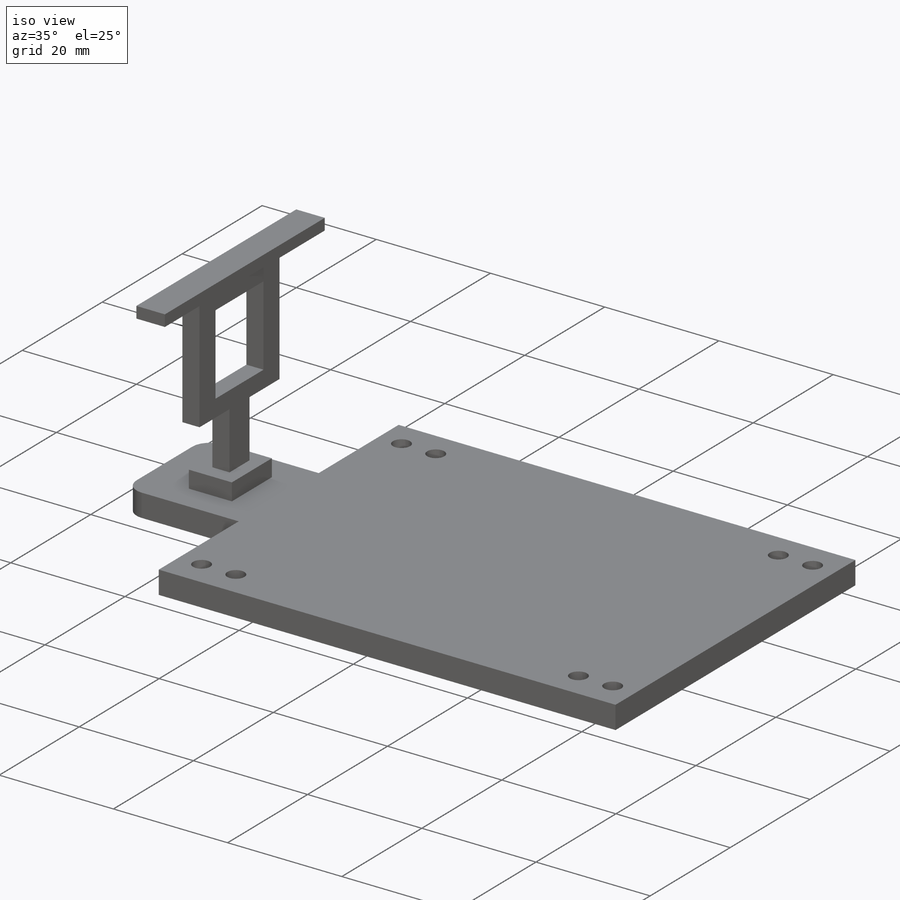
[diagram: iso view]
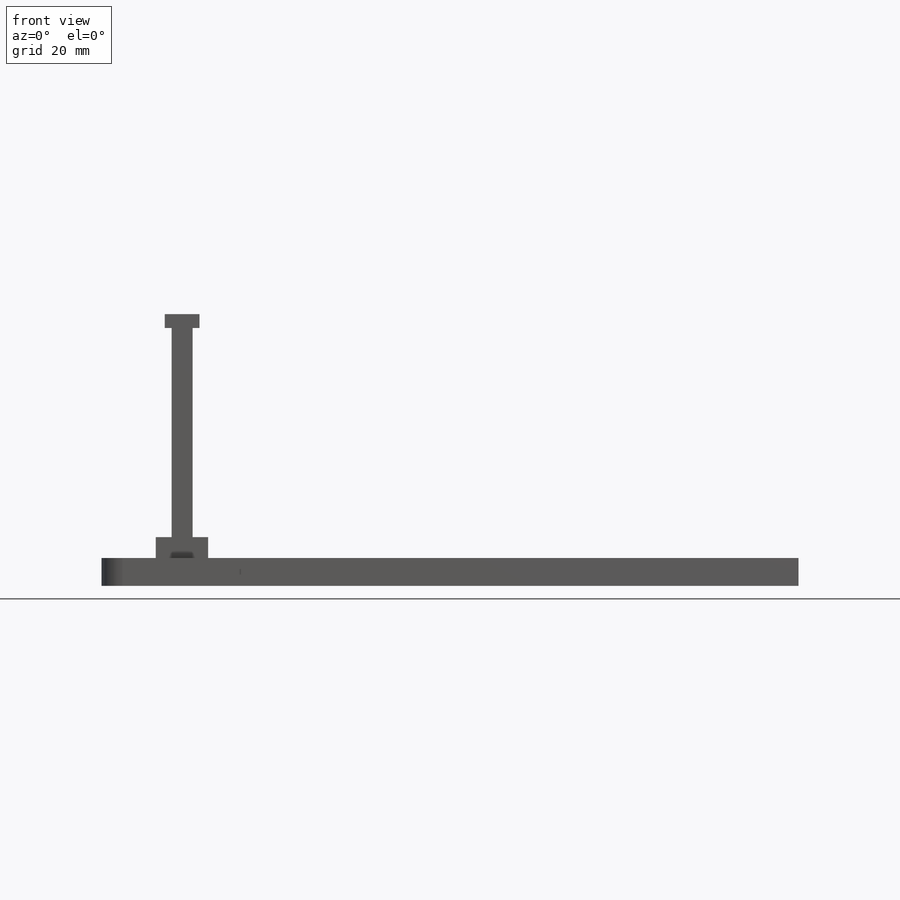
[diagram: front view]
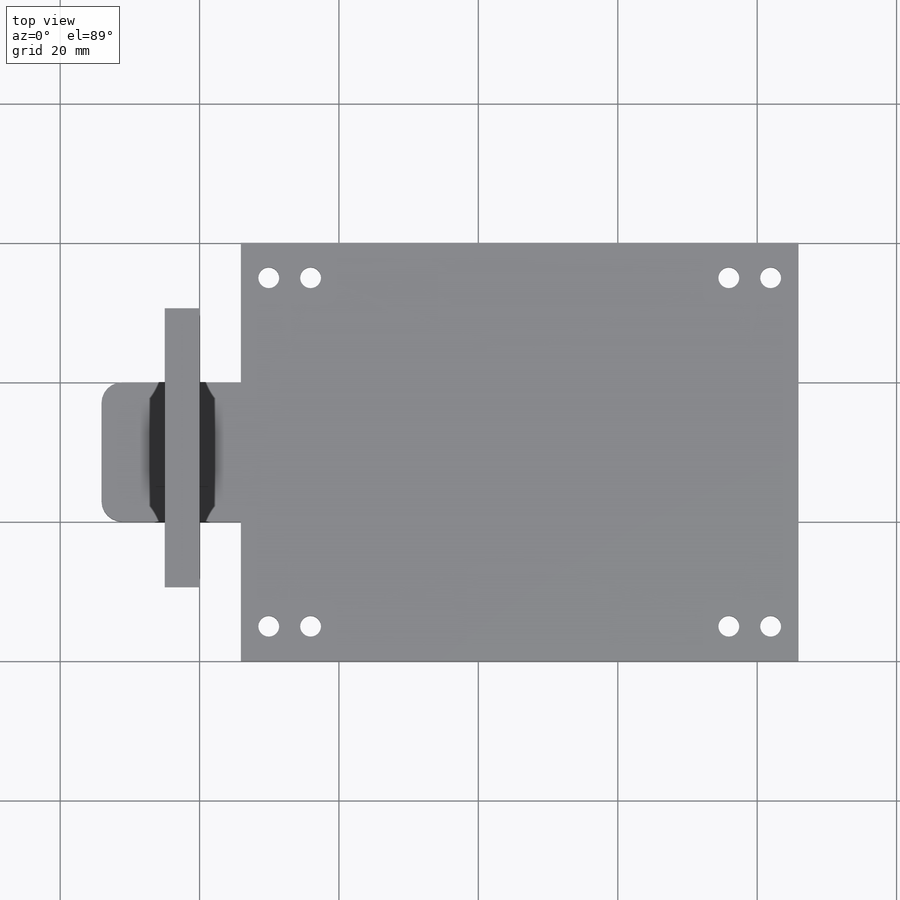
[diagram: top view]
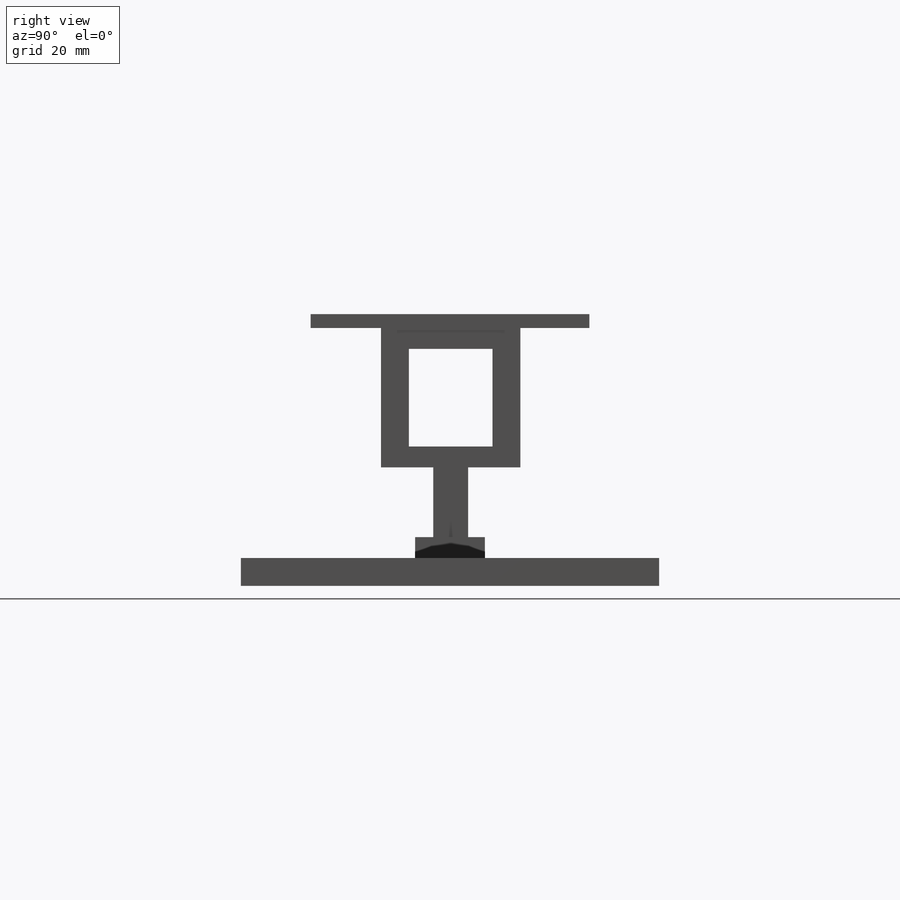
[diagram: right view]
SOLIDWORKS PART (.sldprt)
format: sldprt  version: not decoded by parser v0  size: 281,088 bytes
history: native  units: mm
features: sketch x5, extrude x4, material x1, cut_extrude x1 (+13 scaffold rows collapsed)
feature tree (24):
  scaffold x13  (default folders/planes/origin — collapsed)
  material  "Material <not specified>"
  sketch  "Sketch1"  dims[c1.D6=~4.213693mm c1.D2=3.0mm c1.D4=3.0mm c2.D6=3.0mm c2.D7=3.0mm c2.D8=3.0mm c2.D9=3.0mm c2.D10=3.0mm c2.D11=3.0mm c2.D12=3.0mm c2.D13=3.0mm c2.D14=3.0mm c2.D15=3.0mm c2.D16=3.0mm c2.D17=3.0mm c2.D18=3.0mm c2.D19=3.0mm c2.D1=80.0mm c2.D2=20.0mm c2.D3=60.0mm c2.D4=20.0mm c2.D5=20.0mm c3.D2=5.0mm c3.D4=5.0mm c3.D6=10.0mm c3.D7=4.0mm c3.D8=5.0mm c3.D9=4.0mm c3.D10=5.0mm c3.D11=10.0mm c3.D12=5.0mm c3.D13=5.0mm c3.D14=10.0mm c3.D15=4.0mm c3.D16=5.0mm c3.D17=10.0mm c3.D18=5.0mm c3.D19=4.0mm]
  extrude  "Boss-Extrude2"  Depth=4mm
  sketch  "Sketch2"  dims[D1=5.0mm D2=5.0mm D3=10.0mm]
  extrude  "Boss-Extrude3"  Depth=3mm
  sketch  "Sketch4"  dims[D1=10.0mm D2=10.0mm D3=20.0mm D4=20.0mm D5=20.0mm D6=5.0mm D7=7.5mm D8=10.0mm D9=3.0mm D10=3.0mm D11=3.0mm D12=4.0mm D13=4.0mm]
  extrude  "Boss-Extrude4"  Depth=64mm
  sketch  "Sketch5"
  cut_extrude  "Cut-Extrude1"  Depth=61mm
  sketch  "Sketch6"  dims[D1=40.0mm D2=5.0mm D3=1.0mm D4=10.0mm D5=~9.897016mm]
  extrude  "Boss-Extrude5"  Depth=2mm
decode coverage: 9 of 10 modeling features carry decoded parameters
note: ~ marks probable driven/reference dimensions
note: suppression state not decoded; provenance and decode notes live in map.json
